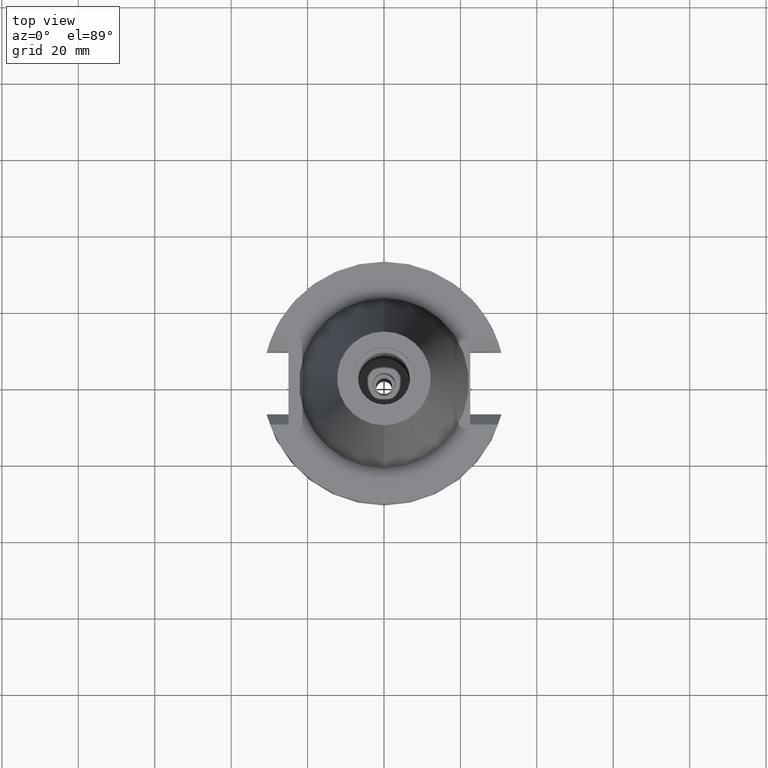
[diagram: clean part render]
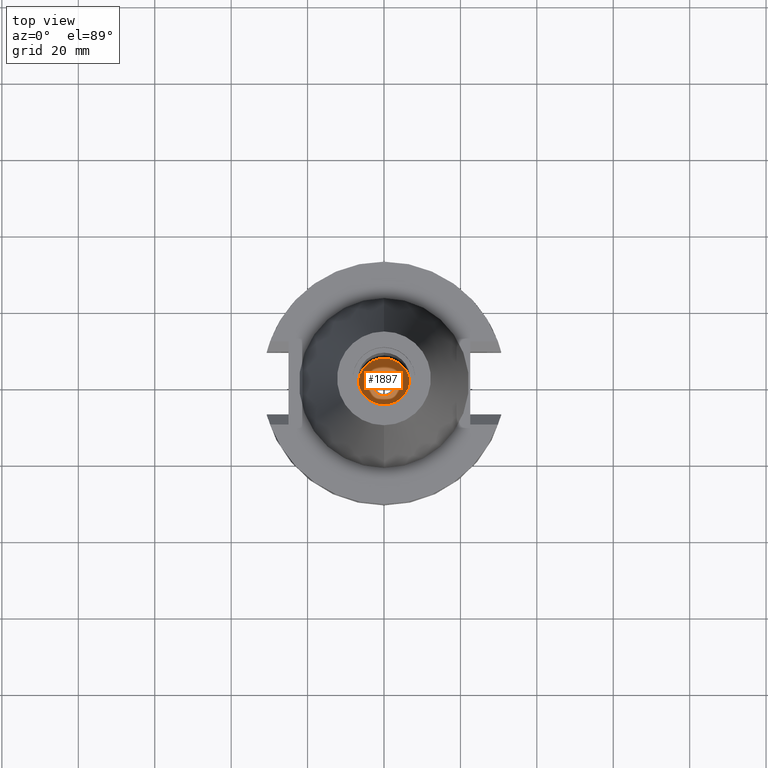
[diagram: same view with one face highlighted and labeled with its STEP entity id]
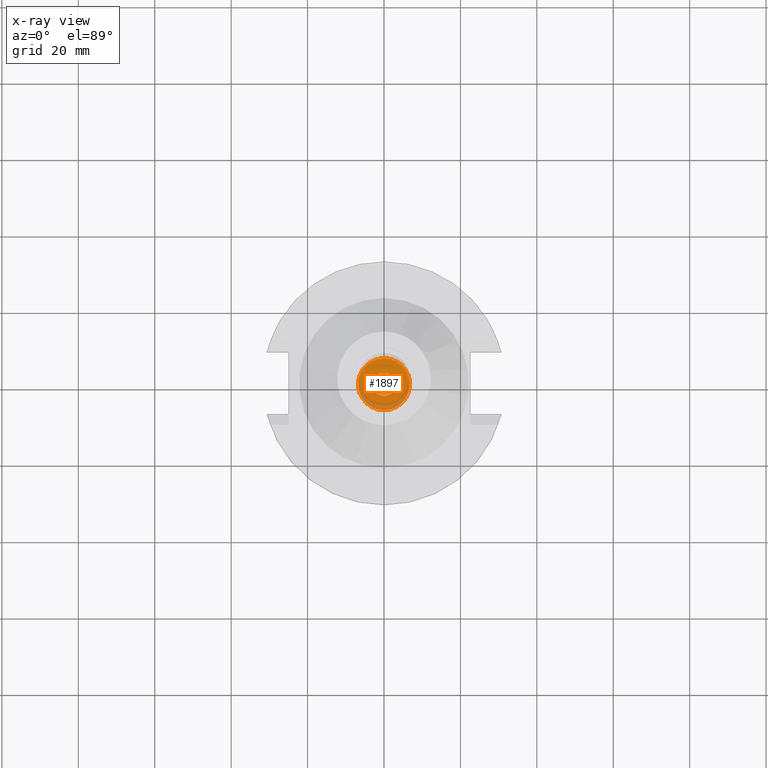
[diagram: x-ray of the same camera — body ghosted, the highlighted face saturated]
A machine part, top view. The second image highlights one B-rep face of the part: STEP entity #1897.
The next image is the same camera in x-ray: the body ghosted, the highlighted face saturated — about 17% of this face is hidden behind the body in this view.
In plain terms, the highlighted planar face has unit normal (0, 0, -1).
Its self-contained STEP definition (entity closure, byte-faithful):
#27 = DIRECTION ( 'NONE',  ( 0.0000000000000000000, -1.000000000000000000, 0.0000000000000000000 ) ) ;
#62 = CARTESIAN_POINT ( 'NONE',  ( 0.0000000000000000000, -3.000000000000000000, -21.75000000000000000 ) ) ;
#166 = CIRCLE ( 'NONE', #2794, 3.000000000000000000 ) ;
#377 = CARTESIAN_POINT ( 'NONE',  ( 0.0000000000000000000, 2.162022075384999775E-14, -21.75000000000000000 ) ) ;
#605 = CIRCLE ( 'NONE', #2835, 3.000000000000000000 ) ;
#719 = EDGE_LOOP ( 'NONE', ( #2684, #3021 ) ) ;
#782 = CARTESIAN_POINT ( 'NONE',  ( 0.0000000000000000000, 6.799999999999999822, -21.75000000000000000 ) ) ;
#920 = EDGE_CURVE ( 'NONE', #1214, #2051, #605, .T. ) ;
#979 = DIRECTION ( 'NONE',  ( 0.0000000000000000000, 1.000000000000000000, 0.0000000000000000000 ) ) ;
#1042 = DIRECTION ( 'NONE',  ( 0.0000000000000000000, 0.0000000000000000000, -1.000000000000000000 ) ) ;
#1088 = CARTESIAN_POINT ( 'NONE',  ( 0.0000000000000000000, 0.0000000000000000000, -21.75000000000000000 ) ) ;
#1090 = EDGE_CURVE ( 'NONE', #2051, #1214, #166, .T. ) ;
#1118 = CARTESIAN_POINT ( 'NONE',  ( 0.0000000000000000000, -6.799999999999999822, -21.75000000000000000 ) ) ;
#1189 = CARTESIAN_POINT ( 'NONE',  ( 0.0000000000000000000, 2.162022075384999775E-14, -21.75000000000000000 ) ) ;
#1214 = VERTEX_POINT ( 'NONE', #1303 ) ;
#1226 = CIRCLE ( 'NONE', #1834, 6.799999999999999822 ) ;
#1303 = CARTESIAN_POINT ( 'NONE',  ( 0.0000000000000000000, 3.000000000000000000, -21.75000000000000000 ) ) ;
#1634 = ORIENTED_EDGE ( 'NONE', *, *, #1090, .F. ) ;
#1834 = AXIS2_PLACEMENT_3D ( 'NONE', #377, #2258, #1990 ) ;
#1852 = CARTESIAN_POINT ( 'NONE',  ( 0.0000000000000000000, 2.162022075384999775E-14, -21.75000000000000000 ) ) ;
#1872 = ORIENTED_EDGE ( 'NONE', *, *, #920, .F. ) ;
#1897 = ADVANCED_FACE ( 'NONE', ( #2779, #2247 ), #2483, .F. ) ;
#1932 = CIRCLE ( 'NONE', #3070, 6.799999999999999822 ) ;
#1938 = CARTESIAN_POINT ( 'NONE',  ( 0.0000000000000000000, 2.162022075384999775E-14, -21.75000000000000000 ) ) ;
#1990 = DIRECTION ( 'NONE',  ( 0.0000000000000000000, -1.000000000000000000, 0.0000000000000000000 ) ) ;
#2009 = DIRECTION ( 'NONE',  ( 0.0000000000000000000, -1.000000000000000000, 0.0000000000000000000 ) ) ;
#2051 = VERTEX_POINT ( 'NONE', #62 ) ;
#2193 = VERTEX_POINT ( 'NONE', #1118 ) ;
#2247 = FACE_BOUND ( 'NONE', #3002, .T. ) ;
#2258 = DIRECTION ( 'NONE',  ( 0.0000000000000000000, 0.0000000000000000000, -1.000000000000000000 ) ) ;
#2393 = AXIS2_PLACEMENT_3D ( 'NONE', #1088, #1042, #2009 ) ;
#2460 = EDGE_CURVE ( 'NONE', #2193, #2828, #1226, .T. ) ;
#2483 = PLANE ( 'NONE',  #2393 ) ;
#2628 = DIRECTION ( 'NONE',  ( 0.0000000000000000000, 0.0000000000000000000, -1.000000000000000000 ) ) ;
#2684 = ORIENTED_EDGE ( 'NONE', *, *, #3199, .F. ) ;
#2779 = FACE_OUTER_BOUND ( 'NONE', #719, .T. ) ;
#2794 = AXIS2_PLACEMENT_3D ( 'NONE', #1938, #2971, #27 ) ;
#2828 = VERTEX_POINT ( 'NONE', #782 ) ;
#2835 = AXIS2_PLACEMENT_3D ( 'NONE', #1189, #2906, #979 ) ;
#2887 = DIRECTION ( 'NONE',  ( 0.0000000000000000000, 1.000000000000000000, 0.0000000000000000000 ) ) ;
#2906 = DIRECTION ( 'NONE',  ( 0.0000000000000000000, 0.0000000000000000000, 1.000000000000000000 ) ) ;
#2971 = DIRECTION ( 'NONE',  ( 0.0000000000000000000, 0.0000000000000000000, 1.000000000000000000 ) ) ;
#3002 = EDGE_LOOP ( 'NONE', ( #1872, #1634 ) ) ;
#3021 = ORIENTED_EDGE ( 'NONE', *, *, #2460, .F. ) ;
#3070 = AXIS2_PLACEMENT_3D ( 'NONE', #1852, #2628, #2887 ) ;
#3199 = EDGE_CURVE ( 'NONE', #2828, #2193, #1932, .T. ) ;